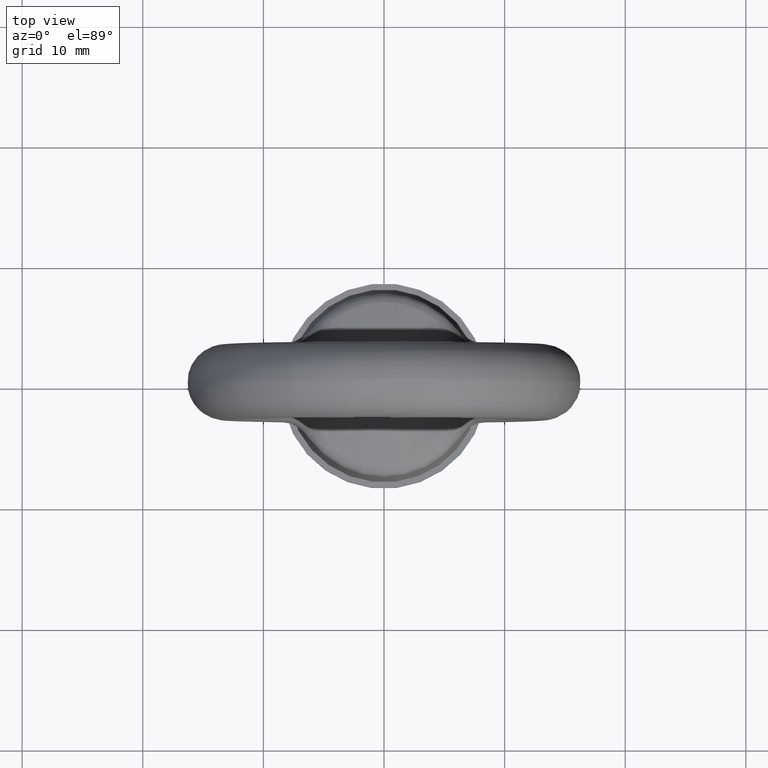
[diagram: clean part render]
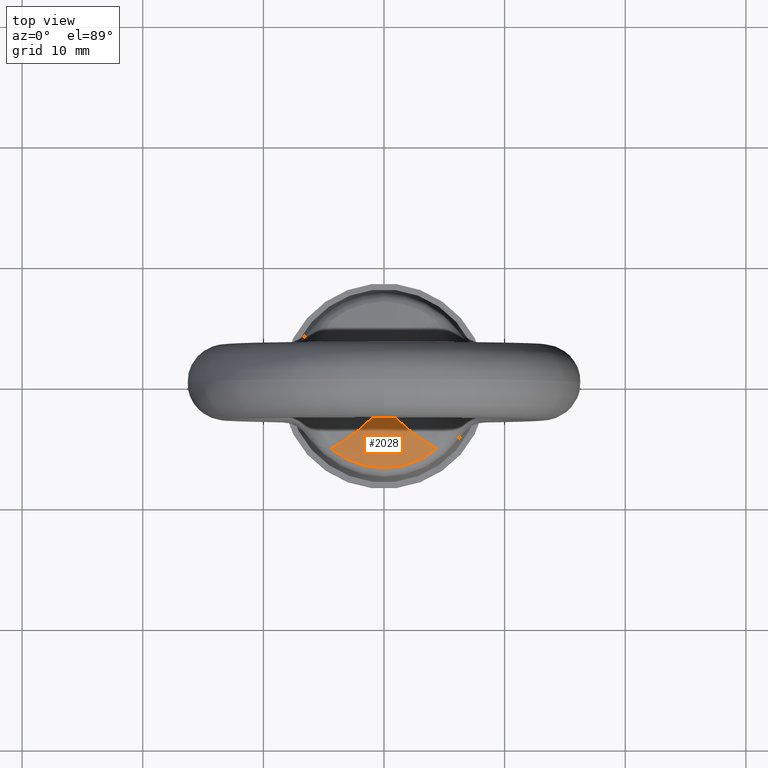
[diagram: same view with one face highlighted and labeled with its STEP entity id]
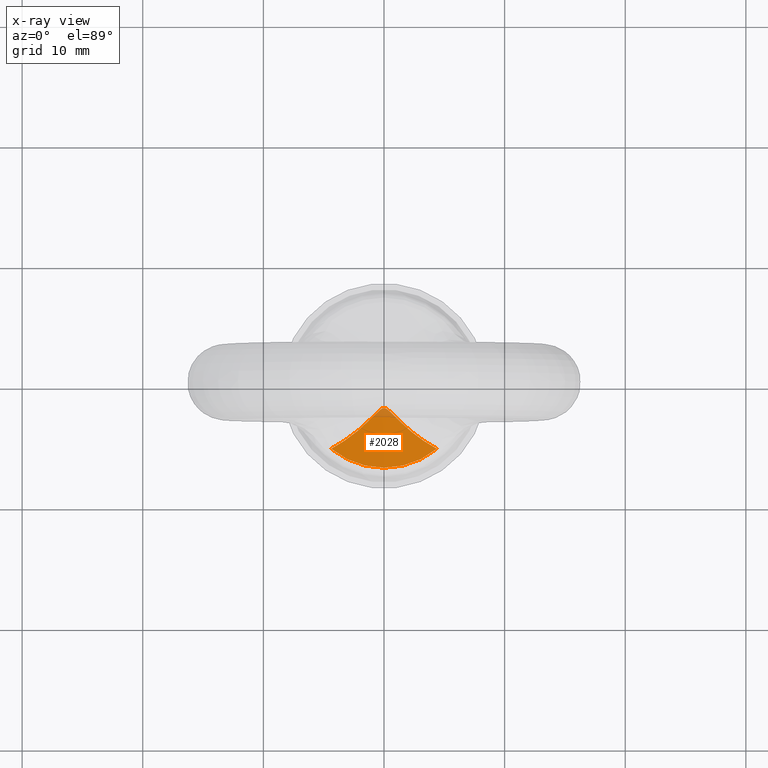
[diagram: x-ray of the same camera — body ghosted, the highlighted face saturated]
A machine part, top view. The second image highlights one B-rep face of the part: STEP entity #2028.
The next image is the same camera in x-ray: the body ghosted, the highlighted face saturated — about 4% of this face is hidden behind the body in this view.
In plain terms, the highlighted conical surface has half-angle 75.187 deg.
Its self-contained STEP definition (entity closure, byte-faithful):
#1871 = VERTEX_POINT ( 'NONE', #2678 ) ;
#1876 = EDGE_LOOP ( 'NONE', ( #2031, #1892 ) ) ;
#1877 = EDGE_CURVE ( 'NONE', #1871, #2030, #2666, .T. ) ;
#1892 = ORIENTED_EDGE ( 'NONE', *, *, #1893, .T. ) ;
#1893 = EDGE_CURVE ( 'NONE', #2030, #1871, #2727, .T. ) ;
#2028 = ADVANCED_FACE ( 'NONE', ( #3676 ), #3675, .T. ) ;
#2030 = VERTEX_POINT ( 'NONE', #3696 ) ;
#2031 = ORIENTED_EDGE ( 'NONE', *, *, #1877, .T. ) ;
#2625 = CARTESIAN_POINT ( 'NONE',  ( 1.397898176269576800, -3.141844086525494200, -10.90799291532978000 ) ) ;
#2626 = CARTESIAN_POINT ( 'NONE',  ( 1.737320777005034300, -3.457297693340970000, -11.02234449736522300 ) ) ;
#2627 = CARTESIAN_POINT ( 'NONE',  ( 2.798019463009791400, -4.347551089413340000, -11.36452464888773400 ) ) ;
#2628 = CARTESIAN_POINT ( 'NONE',  ( 3.557925837399230400, -4.870944406147743600, -11.59240566235216700 ) ) ;
#2631 = DIRECTION ( 'NONE',  ( 1.000000000000000000, 0.0000000000000000000, 0.0000000000000000000 ) ) ;
#2632 = DIRECTION ( 'NONE',  ( 0.0000000000000000000, 0.0000000000000000000, 1.000000000000000000 ) ) ;
#2633 = AXIS2_PLACEMENT_3D ( 'NONE', #2641, #2632, #2631 ) ;
#2641 = CARTESIAN_POINT ( 'NONE',  ( 0.0000000000000000000, 0.0000000000000000000, -11.82035886595320000 ) ) ;
#2642 = CARTESIAN_POINT ( 'NONE',  ( -0.5096597222430625500, -2.259783229994323700, -10.61242557287939700 ) ) ;
#2643 = CARTESIAN_POINT ( 'NONE',  ( -0.4255710751506052200, -2.179522824176067800, -10.58690775365657400 ) ) ;
#2644 = CARTESIAN_POINT ( 'NONE',  ( -0.2877155168357015100, -2.071032753941788800, -10.55286751349224200 ) ) ;
#2645 = CARTESIAN_POINT ( 'NONE',  ( -0.2401995182188390900, -2.037257521028040600, -10.54235300231890600 ) ) ;
#2646 = CARTESIAN_POINT ( 'NONE',  ( -0.1369021240841870900, -1.982437054277230700, -10.52536687418735700 ) ) ;
#2647 = CARTESIAN_POINT ( 'NONE',  ( -0.07870992137238833100, -1.961178321514120500, -10.51882753187805600 ) ) ;
#2648 = CARTESIAN_POINT ( 'NONE',  ( 0.04196265129505780100, -1.954259675236806900, -10.51669839774702600 ) ) ;
#2666 = CIRCLE ( 'NONE', #2633, 6.883272053447160300 ) ;
#2667 = CARTESIAN_POINT ( 'NONE',  ( 4.383375090677879400, -5.307113808483039800, -11.82035886595320000 ) ) ;
#2678 = CARTESIAN_POINT ( 'NONE',  ( -4.383375090677884800, -5.307113808483039800, -11.82035886595320000 ) ) ;
#2719 = CARTESIAN_POINT ( 'NONE',  ( -4.383375090677884800, -5.307113808483039800, -11.82035886595320000 ) ) ;
#2720 = CARTESIAN_POINT ( 'NONE',  ( -3.566652459884731600, -4.875555574791705200, -11.59481557615883900 ) ) ;
#2721 = CARTESIAN_POINT ( 'NONE',  ( -2.810234521547504600, -4.356393167962538700, -11.36826128347265200 ) ) ;
#2722 = CARTESIAN_POINT ( 'NONE',  ( -1.750507485430973000, -3.469051385512238500, -11.02669771930194100 ) ) ;
#2723 = CARTESIAN_POINT ( 'NONE',  ( -1.412033229726243200, -3.155254818239794800, -10.91280066053382700 ) ) ;
#2724 = CARTESIAN_POINT ( 'NONE',  ( -0.9195787010115706900, -2.668079675143895500, -10.74591171763279400 ) ) ;
#2725 = CARTESIAN_POINT ( 'NONE',  ( -0.7586439645057717600, -2.502216056348609600, -10.69074099464750400 ) ) ;
#2727 = B_SPLINE_CURVE_WITH_KNOTS ( 'NONE', 3,
 ( #2667, #2628, #2627, #2626, #2625, #2735, #2734, #2733, #2732, #2731, #2730, #2729, #2648, #2647, #2646, #2645, #2644, #2643, #2642, #2725, #2724, #2723, #2722, #2721, #2720, #2719 ),
 .UNSPECIFIED., .F., .F.,
 ( 4, 2, 2, 2, 2, 2, 2, 2, 2, 2, 2, 2, 4 ),
 ( 8.845388854693243300E-018, 0.002849000128723125000, 0.004273500193084684000, 0.004985750225265463100, 0.005341875241355853100, 0.005519937749401048100, 0.005698000257446243100, 0.005876062765491438100, 0.006054125273536633100, 0.006410250289627023000, 0.007122500321807803900, 0.008547000386169366400, 0.01139600051489249000 ),
 .UNSPECIFIED. ) ;
#2729 = CARTESIAN_POINT ( 'NONE',  ( 0.1019936144626064400, -1.969284987663809700, -10.52131255171258900 ) ) ;
#2730 = CARTESIAN_POINT ( 'NONE',  ( 0.2110781151855828900, -2.018837664753271500, -10.53663483191443400 ) ) ;
#2731 = CARTESIAN_POINT ( 'NONE',  ( 0.2604815879835962700, -2.051721077837779500, -10.54684445202691600 ) ) ;
#2732 = CARTESIAN_POINT ( 'NONE',  ( 0.4026057345075228500, -2.158549296402533500, -10.58027824926283200 ) ) ;
#2733 = CARTESIAN_POINT ( 'NONE',  ( 0.4875811805688726200, -2.238954748213266600, -10.60577108084254200 ) ) ;
#2734 = CARTESIAN_POINT ( 'NONE',  ( 0.7396008049427961200, -2.482554807024389500, -10.68426655648407800 ) ) ;
#2735 = CARTESIAN_POINT ( 'NONE',  ( 0.9016977246516544300, -2.650081693946245000, -10.73986136065491300 ) ) ;
#3675 = CONICAL_SURFACE ( 'NONE', #3701, 7.562556070928420300, 1.312253913343820200 ) ;
#3676 = FACE_OUTER_BOUND ( 'NONE', #1876, .T. ) ;
#3680 = CARTESIAN_POINT ( 'NONE',  ( 0.0000000000000000000, 0.0000000000000000000, -12.00000327454090200 ) ) ;
#3696 = CARTESIAN_POINT ( 'NONE',  ( 4.383375090677879400, -5.307113808483039800, -11.82035886595320000 ) ) ;
#3699 = DIRECTION ( 'NONE',  ( -1.000000000000000000, 0.0000000000000000000, 0.0000000000000000000 ) ) ;
#3700 = DIRECTION ( 'NONE',  ( 0.0000000000000000000, 0.0000000000000000000, -1.000000000000000000 ) ) ;
#3701 = AXIS2_PLACEMENT_3D ( 'NONE', #3680, #3700, #3699 ) ;